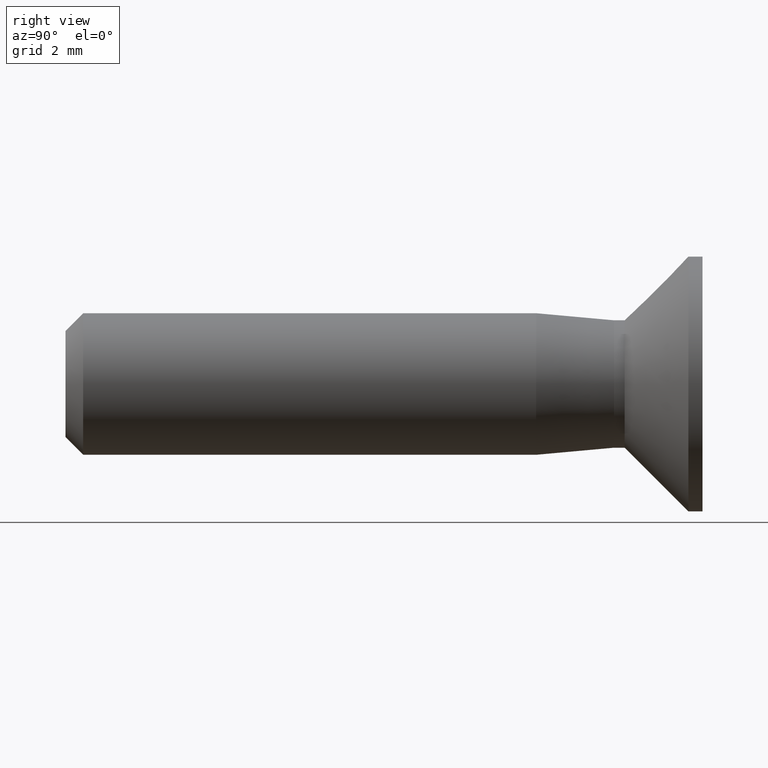
[diagram: clean part render]
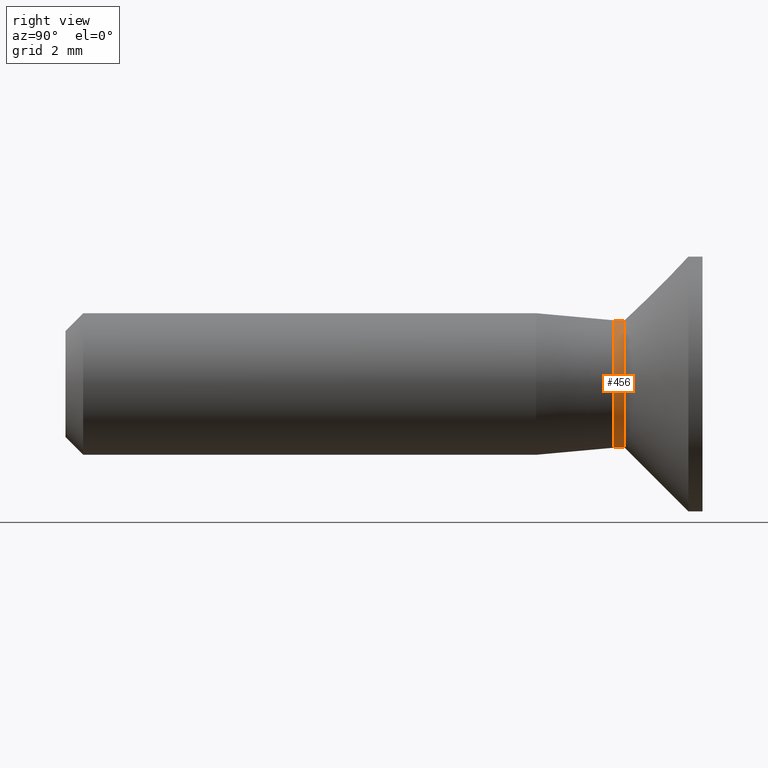
[diagram: same view with one face highlighted and labeled with its STEP entity id]
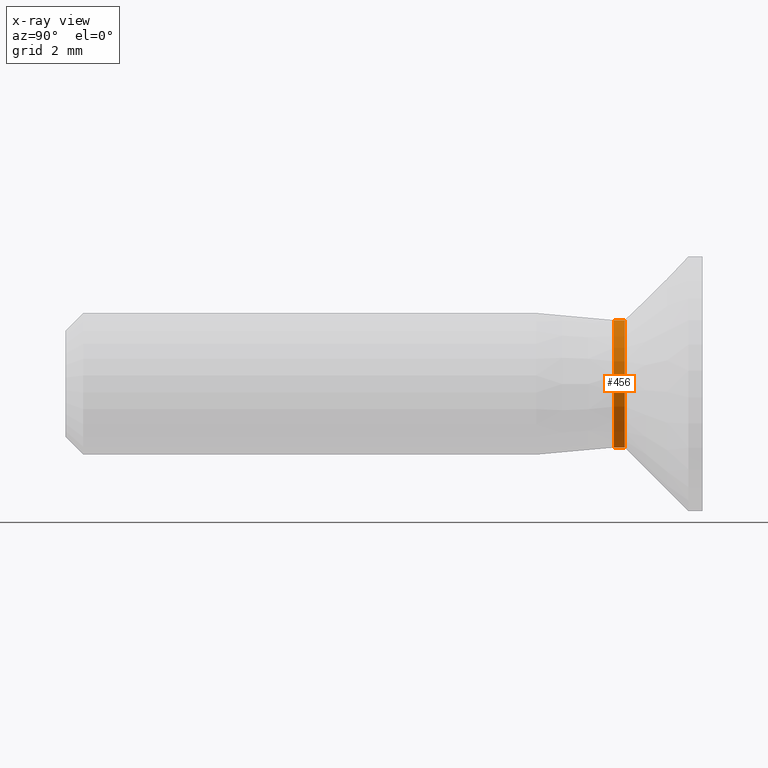
[diagram: x-ray of the same camera — body ghosted, the highlighted face saturated]
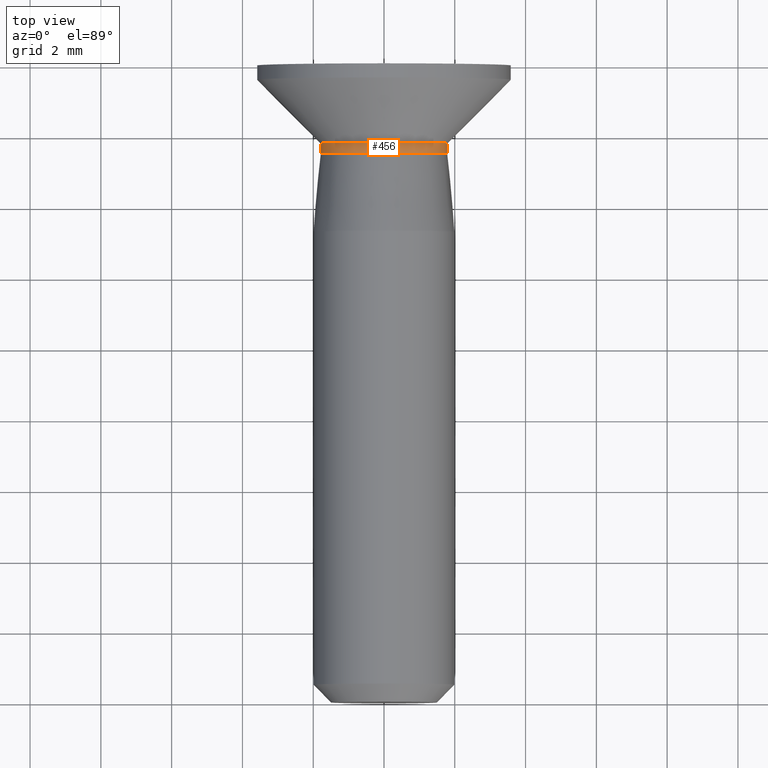
[diagram: same view with one face highlighted and labeled with its STEP entity id]
A machine part, right view. The second image highlights one B-rep face of the part: STEP entity #456.
The next image is the same camera in x-ray: the body ghosted, the highlighted face saturated — about 0% of this face is hidden behind the body in this view.
A second angle (top view) of the same face is appended — the face is thin or edge-on in the first view.
In plain terms, the highlighted cylindrical surface (bore or boss wall) has radius 1.8 mm, axis along (-0, -1, -0).
Its self-contained STEP definition (entity closure, byte-faithful):
#125 = EDGE_CURVE ( 'NONE', #12972, #12972, #10049, .T. ) ;
#456 = ADVANCED_FACE ( 'NONE', ( #4548, #11280 ), #5611, .T. ) ;
#2477 = ORIENTED_EDGE ( 'NONE', *, *, #2515, .F. ) ;
#2515 = EDGE_CURVE ( 'NONE', #14196, #14196, #13003, .T. ) ;
#2887 = AXIS2_PLACEMENT_3D ( 'NONE', #12211, #12406, #5466 ) ;
#3288 = EDGE_LOOP ( 'NONE', ( #7287 ) ) ;
#3636 = CARTESIAN_POINT ( 'NONE',  ( 0.0000000000000000000, 15.79999999999999900, -1.800000000000000500 ) ) ;
#4114 = EDGE_LOOP ( 'NONE', ( #2477 ) ) ;
#4548 = FACE_OUTER_BOUND ( 'NONE', #3288, .T. ) ;
#4741 = AXIS2_PLACEMENT_3D ( 'NONE', #8248, #5875, #12759 ) ;
#4761 = CARTESIAN_POINT ( 'NONE',  ( 0.0000000000000000000, 15.49999999999999800, -1.800000000000000500 ) ) ;
#5466 = DIRECTION ( 'NONE',  ( 0.0000000000000000000, 0.0000000000000000000, -1.000000000000000000 ) ) ;
#5611 = CYLINDRICAL_SURFACE ( 'NONE', #4741, 1.800000000000000500 ) ;
#5875 = DIRECTION ( 'NONE',  ( -0.0000000000000000000, -1.000000000000000000, -0.0000000000000000000 ) ) ;
#6352 = DIRECTION ( 'NONE',  ( -0.0000000000000000000, -1.000000000000000000, -0.0000000000000000000 ) ) ;
#7287 = ORIENTED_EDGE ( 'NONE', *, *, #125, .T. ) ;
#8248 = CARTESIAN_POINT ( 'NONE',  ( 0.0000000000000000000, 0.0000000000000000000, 0.0000000000000000000 ) ) ;
#8849 = DIRECTION ( 'NONE',  ( 0.0000000000000000000, 0.0000000000000000000, -1.000000000000000000 ) ) ;
#10049 = CIRCLE ( 'NONE', #10524, 1.800000000000000500 ) ;
#10524 = AXIS2_PLACEMENT_3D ( 'NONE', #13125, #6352, #8849 ) ;
#11280 = FACE_OUTER_BOUND ( 'NONE', #4114, .T. ) ;
#12211 = CARTESIAN_POINT ( 'NONE',  ( 0.0000000000000000000, 15.49999999999999800, 0.0000000000000000000 ) ) ;
#12406 = DIRECTION ( 'NONE',  ( -0.0000000000000000000, -1.000000000000000000, -0.0000000000000000000 ) ) ;
#12759 = DIRECTION ( 'NONE',  ( 0.0000000000000000000, 0.0000000000000000000, -1.000000000000000000 ) ) ;
#12972 = VERTEX_POINT ( 'NONE', #3636 ) ;
#13003 = CIRCLE ( 'NONE', #2887, 1.800000000000000500 ) ;
#13125 = CARTESIAN_POINT ( 'NONE',  ( 0.0000000000000000000, 15.79999999999999900, 0.0000000000000000000 ) ) ;
#14196 = VERTEX_POINT ( 'NONE', #4761 ) ;